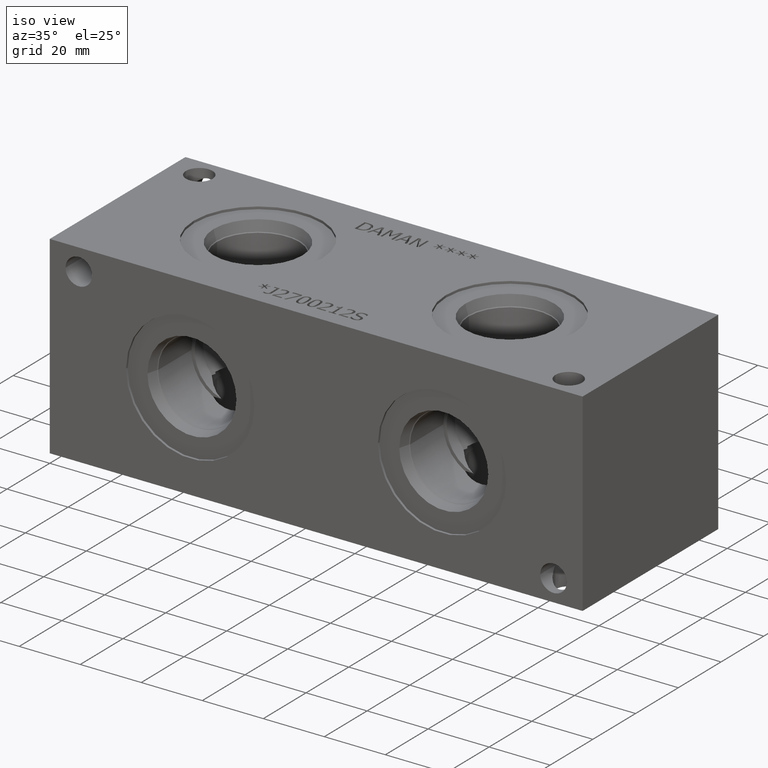
[diagram: clean part render]
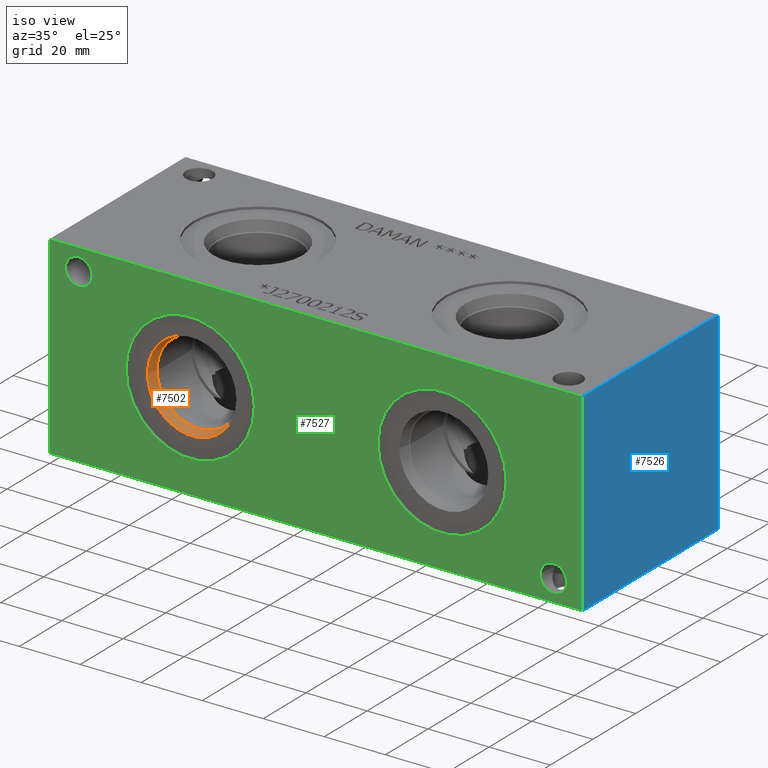
[diagram: same view with three faces highlighted in distinct colors, each labeled with its STEP entity id]
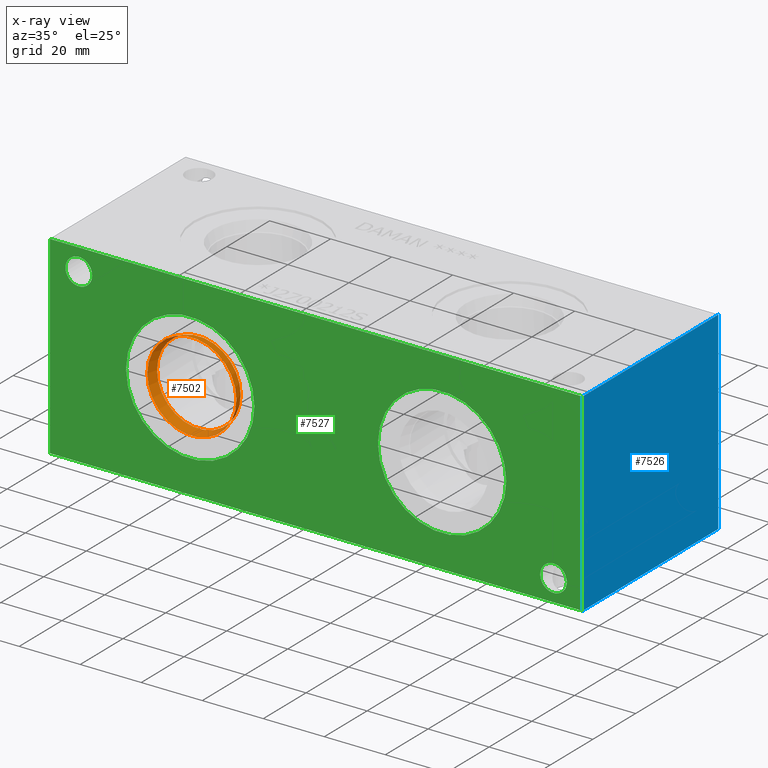
[diagram: x-ray of the same camera — body ghosted, the three highlighted faces saturated]
A machine part, iso view with three faces highlighted in distinct colors.
The next image is the same camera in x-ray (body ghosted, the three faces saturated) — at least one of them is partly hidden behind the body in this view.
Their STEP definitions:

[orange] entity #7502 — the highlighted conical surface has half-angle 15.007 deg.
#48=CONICAL_SURFACE('',#7917,14.15415,0.261922137297759);
#182=CIRCLE('',#7915,14.5923);
#183=CIRCLE('',#7916,14.5923);
#184=CIRCLE('',#7918,13.716);
#185=CIRCLE('',#7919,13.716);
#893=FACE_OUTER_BOUND('',#1303,.T.);
#1303=EDGE_LOOP('',(#6469,#6470,#6471,#6472,#6473,#6474));
#2034=LINE('',#12859,#2748);
#2748=VECTOR('',#9417,14.15415);
#3439=VERTEX_POINT('',#12853);
#3440=VERTEX_POINT('',#12854);
#3441=VERTEX_POINT('',#12858);
#3442=VERTEX_POINT('',#12860);
#4467=EDGE_CURVE('',#3439,#3440,#182,.T.);
#4468=EDGE_CURVE('',#3440,#3439,#183,.T.);
#4469=EDGE_CURVE('',#3440,#3441,#2034,.T.);
#4470=EDGE_CURVE('',#3441,#3442,#184,.T.);
#4471=EDGE_CURVE('',#3442,#3441,#185,.T.);
#6469=ORIENTED_EDGE('',*,*,#4467,.F.);
#6470=ORIENTED_EDGE('',*,*,#4468,.F.);
#6471=ORIENTED_EDGE('',*,*,#4469,.T.);
#6472=ORIENTED_EDGE('',*,*,#4470,.T.);
#6473=ORIENTED_EDGE('',*,*,#4471,.T.);
#6474=ORIENTED_EDGE('',*,*,#4469,.F.);
#7502=ADVANCED_FACE('',(#893),#48,.F.);
#7915=AXIS2_PLACEMENT_3D('',#12855,#9411,#9412);
#7916=AXIS2_PLACEMENT_3D('',#12856,#9413,#9414);
#7917=AXIS2_PLACEMENT_3D('',#12857,#9415,#9416);
#7918=AXIS2_PLACEMENT_3D('',#12861,#9418,#9419);
#7919=AXIS2_PLACEMENT_3D('',#12862,#9420,#9421);
#9411=DIRECTION('center_axis',(0.,1.,0.));
#9412=DIRECTION('ref_axis',(1.,0.,0.));
#9413=DIRECTION('center_axis',(0.,1.,0.));
#9414=DIRECTION('ref_axis',(1.,0.,0.));
#9415=DIRECTION('center_axis',(0.,-1.,0.));
#9416=DIRECTION('ref_axis',(1.,0.,0.));
#9417=DIRECTION('',(0.258937610063224,0.965894049104117,-3.17107115342792E-17));
#9418=DIRECTION('center_axis',(0.,1.,0.));
#9419=DIRECTION('ref_axis',(1.,0.,0.));
#9420=DIRECTION('center_axis',(0.,1.,0.));
#9421=DIRECTION('ref_axis',(1.,0.,0.));
#12853=CARTESIAN_POINT('',(60.6171,0.7874,31.75));
#12854=CARTESIAN_POINT('',(31.4325,0.787399999999999,31.75));
#12855=CARTESIAN_POINT('Origin',(46.0248,0.7874,31.75));
#12856=CARTESIAN_POINT('Origin',(46.0248,0.7874,31.75));
#12857=CARTESIAN_POINT('Origin',(46.0248,2.42179555,31.75));
#12858=CARTESIAN_POINT('',(32.3088,4.0561911,31.75));
#12859=CARTESIAN_POINT('',(31.87065,2.42179555,31.75));
#12860=CARTESIAN_POINT('',(59.7408,4.0561911,31.75));
#12861=CARTESIAN_POINT('Origin',(46.0248,4.0561911,31.75));
#12862=CARTESIAN_POINT('Origin',(46.0248,4.0561911,31.75));

[blue] entity #7526 — the highlighted planar face has unit normal (1, 0, 0).
#917=FACE_OUTER_BOUND('',#1331,.T.);
#1331=EDGE_LOOP('',(#6598,#6599,#6600,#6601));
#1615=LINE('',#11457,#2329);
#2053=LINE('',#12960,#2767);
#2054=LINE('',#12963,#2768);
#2055=LINE('',#12964,#2769);
#2329=VECTOR('',#8400,10.);
#2767=VECTOR('',#9544,10.);
#2768=VECTOR('',#9547,10.);
#2769=VECTOR('',#9548,10.);
#3058=VERTEX_POINT('',#11454);
#3059=VERTEX_POINT('',#11456);
#3469=VERTEX_POINT('',#12958);
#3470=VERTEX_POINT('',#12962);
#3901=EDGE_CURVE('',#3058,#3059,#1615,.T.);
#4519=EDGE_CURVE('',#3469,#3059,#2053,.T.);
#4520=EDGE_CURVE('',#3470,#3469,#2054,.T.);
#4521=EDGE_CURVE('',#3470,#3058,#2055,.T.);
#6598=ORIENTED_EDGE('',*,*,#4520,.T.);
#6599=ORIENTED_EDGE('',*,*,#4519,.T.);
#6600=ORIENTED_EDGE('',*,*,#3901,.F.);
#6601=ORIENTED_EDGE('',*,*,#4521,.F.);
#6854=PLANE('',#7972);
#7526=ADVANCED_FACE('',(#917),#6854,.T.);
#7972=AXIS2_PLACEMENT_3D('',#12961,#9545,#9546);
#8400=DIRECTION('',(0.,1.,0.));
#9544=DIRECTION('',(0.,0.,1.));
#9545=DIRECTION('center_axis',(1.,0.,0.));
#9546=DIRECTION('ref_axis',(0.,1.,0.));
#9547=DIRECTION('',(0.,1.,0.));
#9548=DIRECTION('',(0.,0.,1.));
#11454=CARTESIAN_POINT('',(174.625,0.,63.5));
#11456=CARTESIAN_POINT('',(174.625,63.5,63.5));
#11457=CARTESIAN_POINT('',(174.625,0.,63.5));
#12958=CARTESIAN_POINT('',(174.625,63.5,0.));
#12960=CARTESIAN_POINT('',(174.625,63.5,0.));
#12961=CARTESIAN_POINT('Origin',(174.625,0.,0.));
#12962=CARTESIAN_POINT('',(174.625,0.,0.));
#12963=CARTESIAN_POINT('',(174.625,0.,0.));
#12964=CARTESIAN_POINT('',(174.625,0.,0.));

[green] entity #7527 — the highlighted planar face has unit normal (0, -1, 0).
#149=CIRCLE('',#7852,4.3688);
#150=CIRCLE('',#7853,4.3688);
#152=CIRCLE('',#7862,4.3688);
#153=CIRCLE('',#7863,4.3688);
#155=CIRCLE('',#7872,21.0185);
#156=CIRCLE('',#7873,21.0185);
#178=CIRCLE('',#7910,21.0185);
#179=CIRCLE('',#7911,21.0185);
#251=FACE_BOUND('',#1333,.T.);
#252=FACE_BOUND('',#1334,.T.);
#253=FACE_BOUND('',#1335,.T.);
#254=FACE_BOUND('',#1336,.T.);
#918=FACE_OUTER_BOUND('',#1332,.T.);
#1332=EDGE_LOOP('',(#6602,#6603,#6604,#6605));
#1333=EDGE_LOOP('',(#6606,#6607));
#1334=EDGE_LOOP('',(#6608,#6609));
#1335=EDGE_LOOP('',(#6610,#6611));
#1336=EDGE_LOOP('',(#6612,#6613));
#1614=LINE('',#11455,#2328);
#2050=LINE('',#12955,#2764);
#2055=LINE('',#12964,#2769);
#2056=LINE('',#12966,#2770);
#2328=VECTOR('',#8399,10.);
#2764=VECTOR('',#9539,10.);
#2769=VECTOR('',#9548,10.);
#2770=VECTOR('',#9551,10.);
#3057=VERTEX_POINT('',#11453);
#3058=VERTEX_POINT('',#11454);
#3404=VERTEX_POINT('',#12723);
#3405=VERTEX_POINT('',#12724);
#3409=VERTEX_POINT('',#12741);
#3410=VERTEX_POINT('',#12742);
#3414=VERTEX_POINT('',#12759);
#3415=VERTEX_POINT('',#12760);
#3435=VERTEX_POINT('',#12843);
#3436=VERTEX_POINT('',#12844);
#3468=VERTEX_POINT('',#12953);
#3470=VERTEX_POINT('',#12962);
#3900=EDGE_CURVE('',#3057,#3058,#1614,.T.);
#4406=EDGE_CURVE('',#3404,#3405,#149,.T.);
#4407=EDGE_CURVE('',#3405,#3404,#150,.T.);
#4416=EDGE_CURVE('',#3409,#3410,#152,.T.);
#4417=EDGE_CURVE('',#3410,#3409,#153,.T.);
#4426=EDGE_CURVE('',#3414,#3415,#155,.T.);
#4427=EDGE_CURVE('',#3415,#3414,#156,.T.);
#4462=EDGE_CURVE('',#3435,#3436,#178,.T.);
#4463=EDGE_CURVE('',#3436,#3435,#179,.T.);
#4516=EDGE_CURVE('',#3468,#3057,#2050,.T.);
#4521=EDGE_CURVE('',#3470,#3058,#2055,.T.);
#4522=EDGE_CURVE('',#3468,#3470,#2056,.T.);
#6602=ORIENTED_EDGE('',*,*,#4522,.T.);
#6603=ORIENTED_EDGE('',*,*,#4521,.T.);
#6604=ORIENTED_EDGE('',*,*,#3900,.F.);
#6605=ORIENTED_EDGE('',*,*,#4516,.F.);
#6606=ORIENTED_EDGE('',*,*,#4406,.T.);
#6607=ORIENTED_EDGE('',*,*,#4407,.T.);
#6608=ORIENTED_EDGE('',*,*,#4416,.T.);
#6609=ORIENTED_EDGE('',*,*,#4417,.T.);
#6610=ORIENTED_EDGE('',*,*,#4426,.T.);
#6611=ORIENTED_EDGE('',*,*,#4427,.T.);
#6612=ORIENTED_EDGE('',*,*,#4462,.T.);
#6613=ORIENTED_EDGE('',*,*,#4463,.T.);
#6855=PLANE('',#7973);
#7527=ADVANCED_FACE('',(#918,#251,#252,#253,#254),#6855,.T.);
#7852=AXIS2_PLACEMENT_3D('',#12725,#9267,#9268);
#7853=AXIS2_PLACEMENT_3D('',#12726,#9269,#9270);
#7862=AXIS2_PLACEMENT_3D('',#12743,#9290,#9291);
#7863=AXIS2_PLACEMENT_3D('',#12744,#9292,#9293);
#7872=AXIS2_PLACEMENT_3D('',#12761,#9313,#9314);
#7873=AXIS2_PLACEMENT_3D('',#12762,#9315,#9316);
#7910=AXIS2_PLACEMENT_3D('',#12845,#9400,#9401);
#7911=AXIS2_PLACEMENT_3D('',#12846,#9402,#9403);
#7973=AXIS2_PLACEMENT_3D('',#12965,#9549,#9550);
#8399=DIRECTION('',(1.,0.,0.));
#9267=DIRECTION('center_axis',(0.,1.,0.));
#9268=DIRECTION('ref_axis',(1.,0.,0.));
#9269=DIRECTION('center_axis',(0.,1.,0.));
#9270=DIRECTION('ref_axis',(1.,0.,0.));
#9290=DIRECTION('center_axis',(0.,1.,0.));
#9291=DIRECTION('ref_axis',(1.,0.,0.));
#9292=DIRECTION('center_axis',(0.,1.,0.));
#9293=DIRECTION('ref_axis',(1.,0.,0.));
#9313=DIRECTION('center_axis',(0.,1.,0.));
#9314=DIRECTION('ref_axis',(1.,0.,0.));
#9315=DIRECTION('center_axis',(0.,1.,0.));
#9316=DIRECTION('ref_axis',(1.,0.,0.));
#9400=DIRECTION('center_axis',(0.,1.,0.));
#9401=DIRECTION('ref_axis',(1.,0.,0.));
#9402=DIRECTION('center_axis',(0.,1.,0.));
#9403=DIRECTION('ref_axis',(1.,0.,0.));
#9539=DIRECTION('',(0.,0.,1.));
#9548=DIRECTION('',(0.,0.,1.));
#9549=DIRECTION('center_axis',(0.,-1.,0.));
#9550=DIRECTION('ref_axis',(1.,0.,0.));
#9551=DIRECTION('',(1.,0.,0.));
#11453=CARTESIAN_POINT('',(0.,0.,63.5));
#11454=CARTESIAN_POINT('',(174.625,0.,63.5));
#11455=CARTESIAN_POINT('',(0.,0.,63.5));
#12723=CARTESIAN_POINT('',(169.4688,0.,7.1374));
#12724=CARTESIAN_POINT('',(160.7312,0.,7.1374));
#12725=CARTESIAN_POINT('Origin',(165.1,0.,7.1374));
#12726=CARTESIAN_POINT('Origin',(165.1,0.,7.1374));
#12741=CARTESIAN_POINT('',(13.8938,0.,56.3626));
#12742=CARTESIAN_POINT('',(5.1562,0.,56.3626));
#12743=CARTESIAN_POINT('Origin',(9.525,0.,56.3626));
#12744=CARTESIAN_POINT('Origin',(9.525,0.,56.3626));
#12759=CARTESIAN_POINT('',(149.5933,0.,31.75));
#12760=CARTESIAN_POINT('',(107.5563,0.,31.75));
#12761=CARTESIAN_POINT('Origin',(128.5748,0.,31.75));
#12762=CARTESIAN_POINT('Origin',(128.5748,0.,31.75));
#12843=CARTESIAN_POINT('',(67.0433,0.,31.75));
#12844=CARTESIAN_POINT('',(25.0063,0.,31.75));
#12845=CARTESIAN_POINT('Origin',(46.0248,0.,31.75));
#12846=CARTESIAN_POINT('Origin',(46.0248,0.,31.75));
#12953=CARTESIAN_POINT('',(0.,0.,0.));
#12955=CARTESIAN_POINT('',(0.,0.,0.));
#12962=CARTESIAN_POINT('',(174.625,0.,0.));
#12964=CARTESIAN_POINT('',(174.625,0.,0.));
#12965=CARTESIAN_POINT('Origin',(0.,0.,0.));
#12966=CARTESIAN_POINT('',(0.,0.,0.));